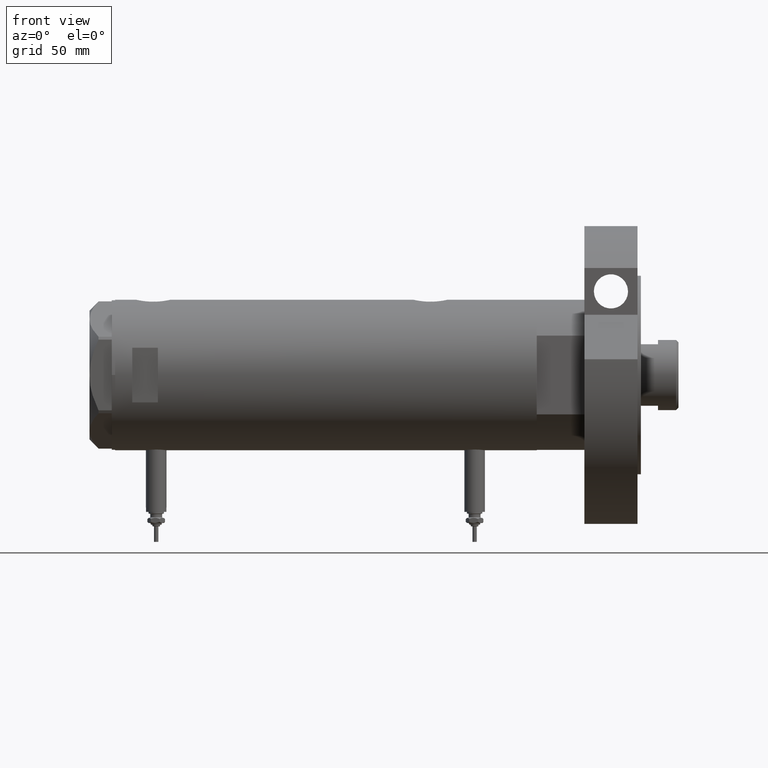
[diagram: clean part render]
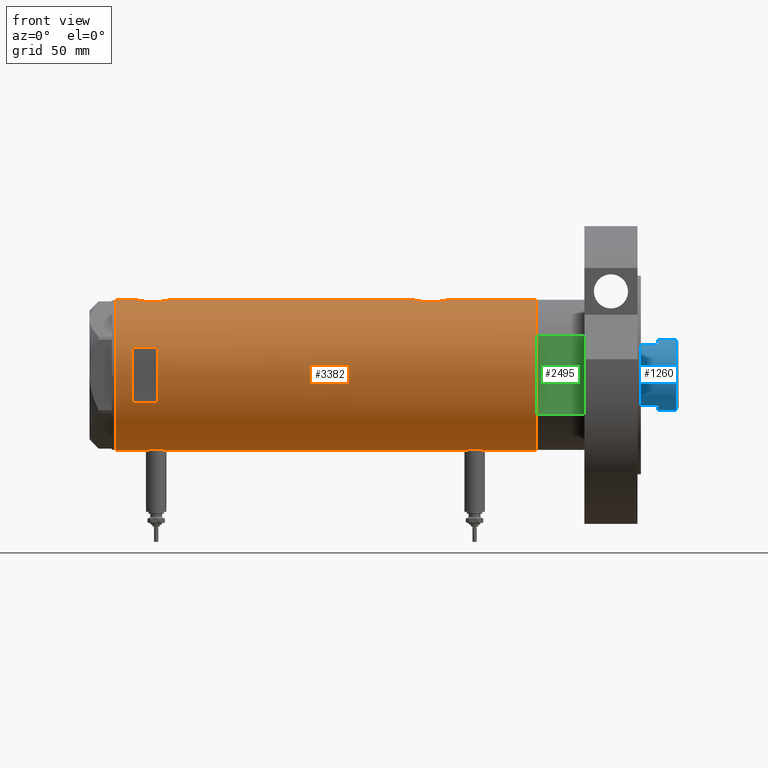
[diagram: same view with three faces highlighted in distinct colors, each labeled with its STEP entity id]
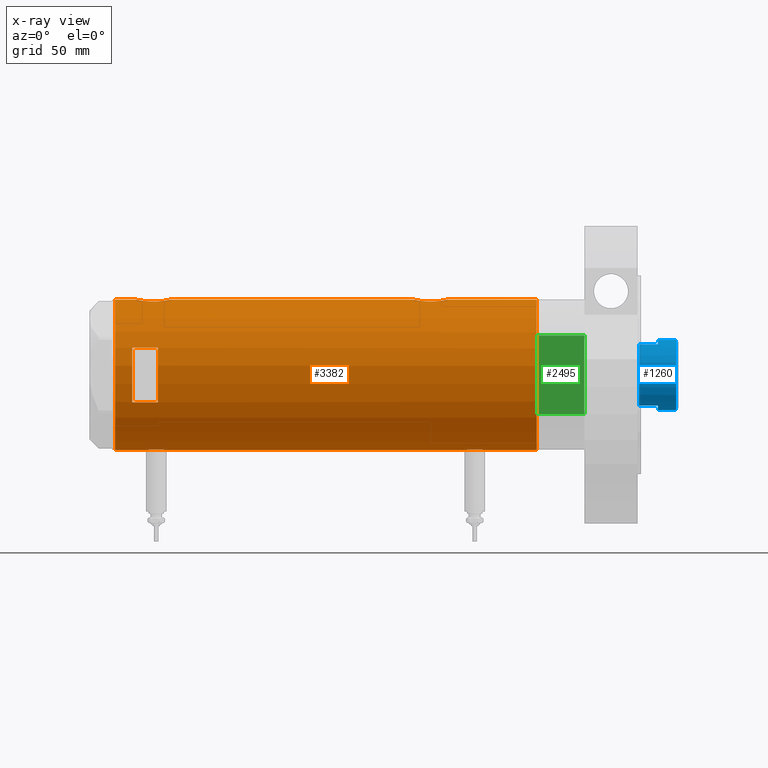
[diagram: x-ray of the same camera — body ghosted, the three highlighted faces saturated]
A machine part, front view with three faces highlighted in distinct colors.
The next image is the same camera in x-ray (body ghosted, the three faces saturated) — at least one of them is partly hidden behind the body in this view.
Their STEP definitions:

[orange] entity #3382 — the highlighted cylindrical surface (partial cylindrical patch) has radius 44 mm, axis along (-1, -0, 0).
#24 = CARTESIAN_POINT ( 'NONE',  ( -43.87623998657197433, -3.302247739865014964, -92.21034343519743004 ) ) ;
#34 = CARTESIAN_POINT ( 'NONE',  ( -43.88927795770376861, -3.124736516396338981, 93.78332595076190614 ) ) ;
#54 = CARTESIAN_POINT ( 'NONE',  ( -44.00000000000000000, 5.388445781982983516E-15, -93.15000000000000568 ) ) ;
#60 = AXIS2_PLACEMENT_3D ( 'NONE', #926, #5530, #6592 ) ;
#84 = CARTESIAN_POINT ( 'NONE',  ( 43.13833976206234411, -8.672905216733562739, -56.07967078979188358 ) ) ;
#86 = CARTESIAN_POINT ( 'NONE',  ( 43.13689707656756411, -8.680169016269172033, 95.89163097888801701 ) ) ;
#120 = CARTESIAN_POINT ( 'NONE',  ( -43.74870614644074607, -4.704745394280565485, 95.06553512659974103 ) ) ;
#121 = CARTESIAN_POINT ( 'NONE',  ( 43.24269204559828950, -8.130405600641552155, -55.26885497193006103 ) ) ;
#259 = CARTESIAN_POINT ( 'NONE',  ( -43.55380622335315621, -6.250277076879245719, -86.49110166609810335 ) ) ;
#306 = CARTESIAN_POINT ( 'NONE',  ( 43.77905627191558580, -4.445085099228549552, -70.08140834316036205 ) ) ;
#398 = CARTESIAN_POINT ( 'NONE',  ( 44.00000000000000000, 0.000000000000000000, -123.2000000000000028 ) ) ;
#425 = EDGE_CURVE ( 'NONE', #2690, #3885, #430, .T. ) ;
#430 = CIRCLE ( 'NONE', #1424, 44.00000000000000000 ) ;
#483 = ORIENTED_EDGE ( 'NONE', *, *, #6586, .F. ) ;
#493 = CARTESIAN_POINT ( 'NONE',  ( -44.00000000000000000, 5.388445916248352830E-15, -123.2000000000000028 ) ) ;
#578 = CARTESIAN_POINT ( 'NONE',  ( -43.74870614644073896, -4.704745394280564597, -91.03446487340028170 ) ) ;
#584 = CARTESIAN_POINT ( 'NONE',  ( -43.80686114384899810, -4.128296917151111245, 94.48984144871687363 ) ) ;
#585 = CARTESIAN_POINT ( 'NONE',  ( 43.39114022679083860, -7.298186114522538404, -54.25582720507937751 ) ) ;
#588 = CARTESIAN_POINT ( 'NONE',  ( 43.27890888111421219, -7.936045294464967093, 106.9931843665719100 ) ) ;
#617 = CARTESIAN_POINT ( 'NONE',  ( 44.00000000000000000, -0.6537011444665492554, -51.09999999999999432 ) ) ;
#622 = CARTESIAN_POINT ( 'NONE',  ( 43.35323102813806884, -7.519449998269471358, 107.5004228928426784 ) ) ;
#624 = CARTESIAN_POINT ( 'NONE',  ( 43.98543813568863214, -1.304985013906734714, 110.8365306627388378 ) ) ;
#652 = CARTESIAN_POINT ( 'NONE',  ( -43.93596008603758207, -2.395372424984026694, -92.68349180530613296 ) ) ;
#660 = CARTESIAN_POINT ( 'NONE',  ( -43.57636709704395628, -6.091127289750674301, 100.6149932566099068 ) ) ;
#663 = CARTESIAN_POINT ( 'NONE',  ( 44.00000000000000000, 0.000000000000000000, -123.2000000000000028 ) ) ;
#696 = CARTESIAN_POINT ( 'NONE',  ( -44.00000000000000000, 5.388445781982983516E-15, -93.15000000000000568 ) ) ;
#705 = CARTESIAN_POINT ( 'NONE',  ( 43.35323102813806173, -7.519449998269467805, -54.49957710715733583 ) ) ;
#711 = CARTESIAN_POINT ( 'NONE',  ( 15.96871942267132027, -40.99999999999999289, 113.1999999999999886 ) ) ;
#731 = CARTESIAN_POINT ( 'NONE',  ( -43.95442538259509746, -2.011679190499022774, -92.82093546509779003 ) ) ;
#741 = CIRCLE ( 'NONE', #2338, 44.00000000000000000 ) ;
#748 = B_SPLINE_CURVE_WITH_KNOTS ( 'NONE', 3,
 ( #6520, #6934, #2461, #2427, #3511, #3031, #1330, #4618, #34, #6448, #5344, #584, #120, #4658, #5808, #5883, #3475, #2996, #4780, #1829, #5268, #2920, #4118, #7054, #660, #6975, #2391, #3621, #1865, #3065, #5844, #4155, #4702, #6487, #7231, #1748, #1906, #1292, #5378, #1791, #3581, #4042, #1944 ),
 .UNSPECIFIED., .F., .F.,
 ( 4, 2, 2, 1, 2, 2, 2, 2, 2, 2, 2, 2, 2, 2, 2, 2, 2, 2, 2, 2, 2, 4 ),
 ( 0.01956509074799517994, 0.02078761141254040559, 0.02139887174481301668, 0.02201013207708562777, 0.02262139240935823886, 0.02323265274163085342, 0.02445517340617609642, 0.02567769407072134288, 0.02690021473526658935, 0.02751147506753921085, 0.02812273539981183582, 0.02934525606435712392, 0.03056777672890240855, 0.03117903706117505433, 0.03179029739344770011, 0.03301281805799302638, 0.03423533872253834570, 0.03545785938708367196, 0.03668038005162899129, 0.03729164038390166136, 0.03790290071617431755, 0.03912542138071964382 ),
 .UNSPECIFIED. ) ;
#765 = CARTESIAN_POINT ( 'NONE',  ( 44.00000000000000000, -3.917167710965456221E-21, -51.10000000000000853 ) ) ;
#779 = EDGE_CURVE ( 'NONE', #6002, #3525, #4027, .T. ) ;
#840 = CARTESIAN_POINT ( 'NONE',  ( -43.74813644611201369, -4.709999724143497879, -82.77155956056772368 ) ) ;
#876 = CARTESIAN_POINT ( 'NONE',  ( -43.59959777593761743, -5.922725608094073557, -84.89350688782587895 ) ) ;
#916 = CARTESIAN_POINT ( 'NONE',  ( -43.59994860325051036, -5.920144153815573240, -88.91406357569761099 ) ) ;
#923 = CARTESIAN_POINT ( 'NONE',  ( 43.13689707656755701, -8.680169016269177362, -66.10836902111202562 ) ) ;
#926 = CARTESIAN_POINT ( 'NONE',  ( 0.000000000000000000, 0.000000000000000000, 113.1999999999999886 ) ) ;
#928 = CARTESIAN_POINT ( 'NONE',  ( 42.84860178791322483, -9.999866241079297779, 101.2339638269416326 ) ) ;
#1009 = B_SPLINE_CURVE_WITH_KNOTS ( 'NONE', 3,
 ( #5379, #617, #4704, #4746, #6488, #1293, #7020, #1830, #5928, #4119, #5345, #585, #705, #3032, #121, #84, #4237, #2462, #4820, #5810, #4781, #2921, #5234, #4660, #6976, #1792, #6416, #1217, #5486, #923, #5452, #7281, #6670, #1474, #2574, #2090, #1510, #7316, #4965, #306, #4889, #2660, #7167, #2126, #6590, #4381, #3812 ),
 .UNSPECIFIED., .F., .F.,
 ( 4, 2, 2, 2, 2, 2, 2, 2, 2, 2, 1, 2, 2, 2, 2, 2, 2, 2, 2, 2, 2, 2, 2, 4 ),
 ( 0.03136730421198213187, 0.03332724096696806221, 0.03528717772195399255, 0.03626714609944695078, 0.03724711447693991595, 0.03920705123192583241, 0.04018701960941878371, 0.04116698798691173500, 0.04312692474189763758, 0.04410689311939058888, 0.04508686149688354017, 0.04606682987437649146, 0.04704679825186944275, 0.04900673500685532452, 0.05096667176184120629, 0.05292660851682708806, 0.05390657689432004629, 0.05488654527181299758, 0.05586651364930594887, 0.05684648202679890711, 0.05880641878178481663, 0.05978638715927775404, 0.06076635553677070534, 0.06272629229175658017 ),
 .UNSPECIFIED. ) ;
#1086 = AXIS2_PLACEMENT_3D ( 'NONE', #7494, #2301, #3386 ) ;
#1217 = CARTESIAN_POINT ( 'NONE',  ( 42.96573602780769363, -9.487415353952515673, -64.32734544583620107 ) ) ;
#1223 = CARTESIAN_POINT ( 'NONE',  ( 43.80655905412561424, -4.132395729537624796, 110.0120532619376235 ) ) ;
#1229 = CARTESIAN_POINT ( 'NONE',  ( 0.000000000000000000, 0.000000000000000000, -123.2000000000000028 ) ) ;
#1282 = CARTESIAN_POINT ( 'NONE',  ( -43.71916086763248899, -4.968610719017467758, -90.71335998854627292 ) ) ;
#1292 = CARTESIAN_POINT ( 'NONE',  ( -43.95404166778756405, -2.020054257598453695, 105.1180894548565590 ) ) ;
#1293 = CARTESIAN_POINT ( 'NONE',  ( 43.80655905412561424, -4.132395729537631901, -51.98794673806236233 ) ) ;
#1330 = CARTESIAN_POINT ( 'NONE',  ( -43.93596008603759628, -2.395372424984027138, 93.41650819469390399 ) ) ;
#1332 = CARTESIAN_POINT ( 'NONE',  ( 43.46477581456304051, -6.845969322274853219, 93.60355539876690045 ) ) ;
#1356 = CARTESIAN_POINT ( 'NONE',  ( -43.57664920749031268, -6.089110472216499481, -88.32363086869412427 ) ) ;
#1359 = CARTESIAN_POINT ( 'NONE',  ( -44.00000000000000000, 5.388445916248352830E-15, -123.2000000000000028 ) ) ;
#1363 = CARTESIAN_POINT ( 'NONE',  ( 43.61181667275830875, -5.838254419127776096, 92.77455890582506015 ) ) ;
#1391 = CARTESIAN_POINT ( 'NONE',  ( -43.60904414879381363, -5.852991024272605536, -84.69843683347096430 ) ) ;
#1424 = AXIS2_PLACEMENT_3D ( 'NONE', #1229, #5856, #6268 ) ;
#1457 = CARTESIAN_POINT ( 'NONE',  ( 43.94187300917955952, -2.283844398366603912, 91.15873953182952505 ) ) ;
#1474 = CARTESIAN_POINT ( 'NONE',  ( 43.39001814939470592, -7.304817421876451888, -67.93703460671676453 ) ) ;
#1506 = CARTESIAN_POINT ( 'NONE',  ( -43.66469451360046605, -5.426465874727614214, -83.77225408135791440 ) ) ;
#1510 = CARTESIAN_POINT ( 'NONE',  ( 43.57553740812844723, -6.102230194686620202, -69.02899655988672123 ) ) ;
#1532 = EDGE_CURVE ( 'NONE', #4057, #6551, #5179, .T. ) ;
#1555 = VERTEX_POINT ( 'NONE', #1706 ) ;
#1603 = CARTESIAN_POINT ( 'NONE',  ( 43.92391465552169905, -2.605621203777302775, 91.23981984898226472 ) ) ;
#1644 = CARTESIAN_POINT ( 'NONE',  ( -15.96871942267131672, -40.99999999999999289, -123.2000000000000028 ) ) ;
#1706 = CARTESIAN_POINT ( 'NONE',  ( -44.00000000000000000, 5.388445781982983516E-15, 92.95000000000000284 ) ) ;
#1716 = CARTESIAN_POINT ( 'NONE',  ( 42.86369059155247641, -9.935849517229275563, 99.59362589981802216 ) ) ;
#1748 = CARTESIAN_POINT ( 'NONE',  ( -43.91398925748692506, -2.775454910411446097, 104.8147077568106482 ) ) ;
#1755 = ORIENTED_EDGE ( 'NONE', *, *, #779, .T. ) ;
#1791 = CARTESIAN_POINT ( 'NONE',  ( -43.97729452866928312, -1.427712738744850496, 105.2882290744342413 ) ) ;
#1792 = CARTESIAN_POINT ( 'NONE',  ( 42.86369059155249062, -9.935849517229280892, -62.40637410018199915 ) ) ;
#1829 = CARTESIAN_POINT ( 'NONE',  ( -43.57664920749030557, -6.089110472216500369, 97.77636913130585583 ) ) ;
#1830 = CARTESIAN_POINT ( 'NONE',  ( 43.71528002050703066, -5.005885132985644859, -52.43693693285515423 ) ) ;
#1845 = CARTESIAN_POINT ( 'NONE',  ( 44.00000000000000000, 0.000000000000000000, -123.2000000000000028 ) ) ;
#1865 = CARTESIAN_POINT ( 'NONE',  ( -43.64013512596971367, -5.618144550806293047, 101.9688425437316539 ) ) ;
#1886 = VECTOR ( 'NONE', #5675, 1000.000000000000000 ) ;
#1906 = CARTESIAN_POINT ( 'NONE',  ( -43.94477385411916970, -2.211843467998030111, 105.0490722992286692 ) ) ;
#1944 = CARTESIAN_POINT ( 'NONE',  ( -44.00000000000000000, 4.945856149313706956E-16, 105.4500000000000171 ) ) ;
#2005 = CARTESIAN_POINT ( 'NONE',  ( -43.94477385411918391, -2.211843467998029222, -81.05092770077139619 ) ) ;
#2090 = CARTESIAN_POINT ( 'NONE',  ( 43.50208939911752282, -6.605519787823896039, -68.61487246254429806 ) ) ;
#2117 = CARTESIAN_POINT ( 'NONE',  ( -44.00000000000000000, 5.388445916248352830E-15, -123.2000000000000028 ) ) ;
#2126 = CARTESIAN_POINT ( 'NONE',  ( 43.94187300917954531, -2.283844398366606132, -70.84126046817048916 ) ) ;
#2146 = CARTESIAN_POINT ( 'NONE',  ( 43.88203303552250389, -3.235230624304763047, 91.43207386936016690 ) ) ;
#2148 = LINE ( 'NONE', #1644, #6635 ) ;
#2180 = CARTESIAN_POINT ( 'NONE',  ( -44.00000000000000000, 4.742402805755500961E-16, -80.65000000000000568 ) ) ;
#2211 = B_SPLINE_CURVE_WITH_KNOTS ( 'NONE', 3,
 ( #696, #7545, #3056, #6967, #5955, #731, #652, #5371, #7047, #24, #2420, #6477, #578, #1282, #7235, #2606, #3688, #916, #6140, #1356, #7161, #4919, #259, #3241, #6549, #3727, #876, #1391, #2568, #1506, #6100, #840, #4302, #3132, #4848, #3164, #2005, #3200, #3645, #5521, #4881, #3096, #7121 ),
 .UNSPECIFIED., .F., .F.,
 ( 4, 2, 2, 1, 2, 2, 2, 2, 2, 2, 2, 2, 2, 2, 2, 2, 2, 2, 2, 2, 2, 4 ),
 ( 0.01956509074799517994, 0.02078761141254040559, 0.02139887174481301668, 0.02201013207708562777, 0.02262139240935823886, 0.02323265274163085342, 0.02445517340617609989, 0.02567769407072134635, 0.02690021473526659282, 0.02751147506753921432, 0.02812273539981183929, 0.02934525606435712738, 0.03056777672890241548, 0.03117903706117505780, 0.03179029739344770011, 0.03301281805799302638, 0.03423533872253835264, 0.03545785938708367196, 0.03668038005162899823, 0.03729164038390166136, 0.03790290071617432449, 0.03912542138071965075 ),
 .UNSPECIFIED. ) ;
#2301 = DIRECTION ( 'NONE',  ( 0.000000000000000000, 0.000000000000000000, 1.000000000000000000 ) ) ;
#2314 = EDGE_CURVE ( 'NONE', #6551, #7166, #2148, .T. ) ;
#2330 = EDGE_CURVE ( 'NONE', #3507, #5435, #6879, .T. ) ;
#2333 = CYLINDRICAL_SURFACE ( 'NONE', #1086, 44.00000000000000000 ) ;
#2338 = AXIS2_PLACEMENT_3D ( 'NONE', #3879, #6806, #4371 ) ;
#2354 = CARTESIAN_POINT ( 'NONE',  ( 43.92776409818817740, -2.602555515054468582, 110.5780334928707447 ) ) ;
#2391 = CARTESIAN_POINT ( 'NONE',  ( -43.59959777593762453, -5.922725608094073557, 101.2064931121741722 ) ) ;
#2392 = CARTESIAN_POINT ( 'NONE',  ( 44.00000000000000000, 0.000000000000000000, 123.2000000000000028 ) ) ;
#2410 = ORIENTED_EDGE ( 'NONE', *, *, #5421, .T. ) ;
#2420 = CARTESIAN_POINT ( 'NONE',  ( -43.83572624786197025, -3.813948911733269664, -91.86836430220658656 ) ) ;
#2427 = CARTESIAN_POINT ( 'NONE',  ( -43.97755541524607992, -1.419649999726222633, 93.10988856076367881 ) ) ;
#2430 = CARTESIAN_POINT ( 'NONE',  ( 42.96858625215907779, -9.471543237354833167, 104.1244477931078194 ) ) ;
#2432 = CARTESIAN_POINT ( 'NONE',  ( 44.00000000000000000, -3.917104602093038540E-21, 110.9000000000000057 ) ) ;
#2461 = CARTESIAN_POINT ( 'NONE',  ( -43.99432382855036394, -0.8140126287075738487, 92.98957833183087018 ) ) ;
#2462 = CARTESIAN_POINT ( 'NONE',  ( 42.99316244204495518, -9.359736474891656499, -57.56396979967825445 ) ) ;
#2517 = CARTESIAN_POINT ( 'NONE',  ( -44.00000000000000000, 5.388445916248352830E-15, 123.2000000000000028 ) ) ;
#2568 = CARTESIAN_POINT ( 'NONE',  ( -43.64013512596970656, -5.618144550806293047, -84.13115745626835462 ) ) ;
#2574 = CARTESIAN_POINT ( 'NONE',  ( 43.46477581456304051, -6.845969322274835456, -68.39644460123312797 ) ) ;
#2606 = CARTESIAN_POINT ( 'NONE',  ( -43.64064219598290606, -5.614224114468904681, -89.67685489619474026 ) ) ;
#2629 = EDGE_CURVE ( 'NONE', #4379, #3525, #5307, .T. ) ;
#2634 = CARTESIAN_POINT ( 'NONE',  ( 43.98503203903425884, -1.316644100880397072, 90.96527044704372145 ) ) ;
#2660 = CARTESIAN_POINT ( 'NONE',  ( 43.88203303552250389, -3.235230624304761715, -70.56792613063983310 ) ) ;
#2684 = LINE ( 'NONE', #2117, #4261 ) ;
#2690 = VERTEX_POINT ( 'NONE', #1359 ) ;
#2855 = ORIENTED_EDGE ( 'NONE', *, *, #5453, .F. ) ;
#2920 = CARTESIAN_POINT ( 'NONE',  ( -43.55388615229804117, -6.249720082677240107, 98.78267485888017063 ) ) ;
#2921 = CARTESIAN_POINT ( 'NONE',  ( 42.86761451923558042, -9.918101748202660772, -59.78132476450375066 ) ) ;
#2923 = CARTESIAN_POINT ( 'NONE',  ( 43.07321175413310499, -8.986876637256992595, 96.46571798011248688 ) ) ;
#2970 = VECTOR ( 'NONE', #3996, 1000.000000000000000 ) ;
#2985 = CARTESIAN_POINT ( 'NONE',  ( 43.24192112218942441, -8.134529092006104634, 95.07447770135891574 ) ) ;
#2996 = CARTESIAN_POINT ( 'NONE',  ( -43.59994860325051036, -5.920144153815573240, 97.18593642430241175 ) ) ;
#3031 = CARTESIAN_POINT ( 'NONE',  ( -43.95442538259509035, -2.011679190499021441, 93.27906453490220429 ) ) ;
#3032 = CARTESIAN_POINT ( 'NONE',  ( 43.27890888111422640, -7.936045294464967093, -55.00681563342806868 ) ) ;
#3056 = CARTESIAN_POINT ( 'NONE',  ( -43.99432382855035684, -0.8140126287075731826, -93.11042166816913834 ) ) ;
#3065 = CARTESIAN_POINT ( 'NONE',  ( -43.66469451360045895, -5.426465874727613325, 102.3277459186421083 ) ) ;
#3069 = CARTESIAN_POINT ( 'NONE',  ( 43.77905627191557159, -4.445085099228552217, 91.91859165683966637 ) ) ;
#3096 = CARTESIAN_POINT ( 'NONE',  ( -44.00000000000000711, -0.4134142287044829667, -80.65000000000003411 ) ) ;
#3107 = CARTESIAN_POINT ( 'NONE',  ( 43.07447880731471201, -8.980869115410033743, 105.3470997020410636 ) ) ;
#3132 = CARTESIAN_POINT ( 'NONE',  ( -43.83513771791773905, -3.820747781112549646, -81.93678981703629916 ) ) ;
#3164 = CARTESIAN_POINT ( 'NONE',  ( -43.91398925748691795, -2.775454910411441656, -81.28529224318936031 ) ) ;
#3200 = CARTESIAN_POINT ( 'NONE',  ( -43.95404166778754984, -2.020054257598467018, -80.98191054514347798 ) ) ;
#3213 = ORIENTED_EDGE ( 'NONE', *, *, #2629, .F. ) ;
#3223 = CARTESIAN_POINT ( 'NONE',  ( 15.96871942267132027, -40.99999999999999289, 98.19999999999998863 ) ) ;
#3241 = CARTESIAN_POINT ( 'NONE',  ( -43.55964145621771877, -6.209995197331128480, -86.08476386616429465 ) ) ;
#3260 = CARTESIAN_POINT ( 'NONE',  ( -15.96871942267132027, -40.99999999999999289, 98.19999999999998863 ) ) ;
#3265 = DIRECTION ( 'NONE',  ( 1.000000000000000000, 0.000000000000000000, 0.000000000000000000 ) ) ;
#3285 = CARTESIAN_POINT ( 'NONE',  ( 42.84850870634927844, -10.00026508230968147, 100.2441608487826130 ) ) ;
#3377 = CARTESIAN_POINT ( 'NONE',  ( 44.00000000000000000, -0.6628808997490054367, 90.90000000000001990 ) ) ;
#3379 = CARTESIAN_POINT ( 'NONE',  ( 0.000000000000000000, 0.000000000000000000, 123.2000000000000028 ) ) ;
#3382 = ADVANCED_FACE ( 'NONE', ( #6393, #6878 ), #2333, .T. ) ;
#3386 = DIRECTION ( 'NONE',  ( 1.000000000000000000, 0.000000000000000000, 0.000000000000000000 ) ) ;
#3389 = DIRECTION ( 'NONE',  ( 0.000000000000000000, 0.000000000000000000, 1.000000000000000000 ) ) ;
#3409 = CARTESIAN_POINT ( 'NONE',  ( 44.00000000000000000, -2.119006702872526837E-15, 90.90000000000000568 ) ) ;
#3475 = CARTESIAN_POINT ( 'NONE',  ( -43.60943079847654502, -5.850114217193380206, 96.99078124073395202 ) ) ;
#3493 = EDGE_CURVE ( 'NONE', #4379, #5435, #7110, .T. ) ;
#3507 = VERTEX_POINT ( 'NONE', #2517 ) ;
#3511 = CARTESIAN_POINT ( 'NONE',  ( -43.97059312650997498, -1.620278982928819556, 93.16021308614132579 ) ) ;
#3515 = CARTESIAN_POINT ( 'NONE',  ( 43.77763691689008851, -4.427538730370032205, 109.8724271220806941 ) ) ;
#3525 = VERTEX_POINT ( 'NONE', #6571 ) ;
#3581 = CARTESIAN_POINT ( 'NONE',  ( -43.99417593155911987, -0.8219945290704643304, 105.4093810241296296 ) ) ;
#3621 = CARTESIAN_POINT ( 'NONE',  ( -43.60904414879381363, -5.852991024272606424, 101.4015631665291437 ) ) ;
#3645 = CARTESIAN_POINT ( 'NONE',  ( -43.97029046111975958, -1.628482392291955128, -80.86241380207945895 ) ) ;
#3688 = CARTESIAN_POINT ( 'NONE',  ( -43.60943079847655213, -5.850114217193378430, -89.10921875926607072 ) ) ;
#3727 = CARTESIAN_POINT ( 'NONE',  ( -43.58327167020068060, -6.041691433183235205, -85.28672449216634277 ) ) ;
#3778 = ORIENTED_EDGE ( 'NONE', *, *, #2314, .F. ) ;
#3812 = CARTESIAN_POINT ( 'NONE',  ( 44.00000000000000000, -1.742910476879209922E-15, -71.10000000000000853 ) ) ;
#3859 = CARTESIAN_POINT ( 'NONE',  ( 44.00000000000000000, -1.742910476879209922E-15, -71.10000000000000853 ) ) ;
#3879 = CARTESIAN_POINT ( 'NONE',  ( 0.000000000000000000, 0.000000000000000000, 98.20000000000017337 ) ) ;
#3885 = VERTEX_POINT ( 'NONE', #398 ) ;
#3888 = CARTESIAN_POINT ( 'NONE',  ( 42.86761451923558042, -9.918101748202657220, 102.2186752354962636 ) ) ;
#3953 = LINE ( 'NONE', #4495, #1886 ) ;
#3965 = CARTESIAN_POINT ( 'NONE',  ( 43.57790701154752355, -6.104591320335876148, 108.8474130089493457 ) ) ;
#3996 = DIRECTION ( 'NONE',  ( 0.000000000000000000, 0.000000000000000000, 1.000000000000000000 ) ) ;
#4027 = LINE ( 'NONE', #5253, #4332 ) ;
#4042 = CARTESIAN_POINT ( 'NONE',  ( -44.00000000000000711, -0.4134142287044841879, 105.4500000000000313 ) ) ;
#4057 = VERTEX_POINT ( 'NONE', #711 ) ;
#4084 = CARTESIAN_POINT ( 'NONE',  ( 43.24269204559828239, -8.130405600641543273, 106.7311450280699319 ) ) ;
#4087 = CARTESIAN_POINT ( 'NONE',  ( 43.88549648731377317, -3.229309612650767658, 110.3866430248638864 ) ) ;
#4118 = CARTESIAN_POINT ( 'NONE',  ( -43.55380622335317042, -6.250277076879246607, 99.60889833390191939 ) ) ;
#4119 = CARTESIAN_POINT ( 'NONE',  ( 43.57790701154751645, -6.104591320335877924, -53.15258699105065432 ) ) ;
#4121 = CARTESIAN_POINT ( 'NONE',  ( 43.35257225115236679, -7.523216248090024649, 94.30394696407654465 ) ) ;
#4155 = CARTESIAN_POINT ( 'NONE',  ( -43.74813644611200658, -4.709999724143498767, 103.3284404394322848 ) ) ;
#4178 = VERTEX_POINT ( 'NONE', #5575 ) ;
#4198 = CARTESIAN_POINT ( 'NONE',  ( 42.96573602780769363, -9.487415353952517449, 97.67265455416384157 ) ) ;
#4237 = CARTESIAN_POINT ( 'NONE',  ( 43.07447880731470491, -8.980869115410037296, -56.65290029795897198 ) ) ;
#4239 = VECTOR ( 'NONE', #5288, 1000.000000000000000 ) ;
#4255 = ORIENTED_EDGE ( 'NONE', *, *, #2330, .F. ) ;
#4261 = VECTOR ( 'NONE', #4413, 1000.000000000000000 ) ;
#4270 = CARTESIAN_POINT ( 'NONE',  ( 43.50208939911752992, -6.605519787823896039, 93.38512753745570194 ) ) ;
#4295 = EDGE_CURVE ( 'NONE', #1555, #4178, #748, .T. ) ;
#4302 = CARTESIAN_POINT ( 'NONE',  ( -43.80623767923740530, -4.134861581628530125, -82.19563632739304637 ) ) ;
#4332 = VECTOR ( 'NONE', #3389, 1000.000000000000000 ) ;
#4340 = EDGE_CURVE ( 'NONE', #7166, #7168, #741, .T. ) ;
#4371 = DIRECTION ( 'NONE',  ( 1.776356839400250465E-15, 1.000000000000000000, 4.731064025391292434E-15 ) ) ;
#4379 = VERTEX_POINT ( 'NONE', #4819 ) ;
#4381 = CARTESIAN_POINT ( 'NONE',  ( 43.99999999999999289, -0.6628808997490076571, -71.09999999999999432 ) ) ;
#4413 = DIRECTION ( 'NONE',  ( 0.000000000000000000, 0.000000000000000000, 1.000000000000000000 ) ) ;
#4432 = EDGE_CURVE ( 'NONE', #4178, #3507, #2684, .T. ) ;
#4442 = DIRECTION ( 'NONE',  ( -0.000000000000000000, -0.000000000000000000, -1.000000000000000000 ) ) ;
#4495 = CARTESIAN_POINT ( 'NONE',  ( -44.00000000000000000, 5.388445916248352830E-15, -123.2000000000000028 ) ) ;
#4618 = CARTESIAN_POINT ( 'NONE',  ( -43.91347832647110039, -2.763895659397272553, 93.59061350622417308 ) ) ;
#4624 = CARTESIAN_POINT ( 'NONE',  ( 43.99999999999999289, -0.6537011444665493665, 110.9000000000000057 ) ) ;
#4658 = CARTESIAN_POINT ( 'NONE',  ( -43.71916086763249609, -4.968610719017477528, 95.38664001145379245 ) ) ;
#4660 = CARTESIAN_POINT ( 'NONE',  ( 42.84860178791322483, -9.999866241079299556, -60.76603617305838156 ) ) ;
#4702 = CARTESIAN_POINT ( 'NONE',  ( -43.80623767923739820, -4.134861581628530125, 103.9043636726069764 ) ) ;
#4704 = CARTESIAN_POINT ( 'NONE',  ( 43.98543813568861793, -1.304985013906732716, -51.16346933726119772 ) ) ;
#4746 = CARTESIAN_POINT ( 'NONE',  ( 43.92776409818818451, -2.602555515054471247, -51.42196650712919137 ) ) ;
#4780 = CARTESIAN_POINT ( 'NONE',  ( -43.58358352828437177, -6.039443007521655638, 97.57836901614263070 ) ) ;
#4781 = CARTESIAN_POINT ( 'NONE',  ( 42.89003040145176726, -9.821289533110936887, -59.13508371670006625 ) ) ;
#4784 = CARTESIAN_POINT ( 'NONE',  ( 42.92195198079052432, -9.681069926205539744, 98.31067499093484230 ) ) ;
#4785 = ORIENTED_EDGE ( 'NONE', *, *, #425, .T. ) ;
#4819 = CARTESIAN_POINT ( 'NONE',  ( 44.00000000000000000, -3.917104602093038540E-21, 110.9000000000000057 ) ) ;
#4820 = CARTESIAN_POINT ( 'NONE',  ( 42.96858625215907779, -9.471543237354843825, -57.87555220689220192 ) ) ;
#4848 = CARTESIAN_POINT ( 'NONE',  ( -43.88932649443424339, -3.137583818903200594, -81.47900961940457876 ) ) ;
#4881 = CARTESIAN_POINT ( 'NONE',  ( -43.99417593155913409, -0.8219945290704695484, -80.69061897587040733 ) ) ;
#4889 = CARTESIAN_POINT ( 'NONE',  ( 43.85817087158036287, -3.542878095418171558, -70.45703661115524596 ) ) ;
#4892 = CARTESIAN_POINT ( 'NONE',  ( 42.99316244204494808, -9.359736474891649394, 104.4360302003217527 ) ) ;
#4919 = CARTESIAN_POINT ( 'NONE',  ( -43.55388615229803406, -6.249720082677240107, -87.31732514111985211 ) ) ;
#4965 = CARTESIAN_POINT ( 'NONE',  ( 43.71626298452613923, -5.019105827807316622, -69.77413437979598143 ) ) ;
#4969 = CARTESIAN_POINT ( 'NONE',  ( 42.85249883256043546, -9.983208936152870194, 101.5657221654182081 ) ) ;
#5005 = ORIENTED_EDGE ( 'NONE', *, *, #5909, .F. ) ;
#5114 = CARTESIAN_POINT ( 'NONE',  ( 43.68175117880464597, -5.289576318274434641, 109.3927754329155846 ) ) ;
#5116 = ORIENTED_EDGE ( 'NONE', *, *, #4295, .F. ) ;
#5145 = VECTOR ( 'NONE', #6321, 1000.000000000000000 ) ;
#5151 = ORIENTED_EDGE ( 'NONE', *, *, #4340, .F. ) ;
#5179 = CIRCLE ( 'NONE', #60, 44.00000000000000000 ) ;
#5234 = CARTESIAN_POINT ( 'NONE',  ( 42.85249883256042835, -9.983208936152877300, -60.43427783458179192 ) ) ;
#5253 = CARTESIAN_POINT ( 'NONE',  ( 44.00000000000000000, 0.000000000000000000, -123.2000000000000028 ) ) ;
#5268 = CARTESIAN_POINT ( 'NONE',  ( -43.55981666146651321, -6.208773019004409477, 98.37562000806386209 ) ) ;
#5270 = DIRECTION ( 'NONE',  ( 0.000000000000000000, 0.000000000000000000, 1.000000000000000000 ) ) ;
#5272 = CARTESIAN_POINT ( 'NONE',  ( 43.27861175590268061, -7.937636171351964975, 94.80897132009003769 ) ) ;
#5288 = DIRECTION ( 'NONE',  ( 0.000000000000000000, 0.000000000000000000, 1.000000000000000000 ) ) ;
#5307 = B_SPLINE_CURVE_WITH_KNOTS ( 'NONE', 3,
 ( #2432, #4624, #624, #2354, #4087, #1223, #3515, #5716, #5114, #3965, #5804, #6331, #622, #588, #4084, #6419, #3107, #4892, #2430, #6525, #6784, #3888, #4969, #928, #3285, #1716, #4784, #4198, #2923, #86, #2985, #5272, #4121, #6451, #1332, #4270, #5489, #1363, #6593, #3069, #7138, #2146, #1603, #1457, #2634, #3377, #3409 ),
 .UNSPECIFIED., .F., .F.,
 ( 4, 2, 2, 2, 2, 2, 2, 2, 2, 2, 1, 2, 2, 2, 2, 2, 2, 2, 2, 2, 2, 2, 2, 4 ),
 ( 0.03136730421198211799, 0.03332724096696803445, 0.03528717772195395785, 0.03626714609944691609, 0.03724711447693987432, 0.03920705123192579078, 0.04018701960941873513, 0.04116698798691167949, 0.04312692474189759595, 0.04410689311939056112, 0.04508686149688351935, 0.04606682987437648452, 0.04704679825186944275, 0.04900673500685531758, 0.05096667176184120629, 0.05292660851682708112, 0.05390657689432002547, 0.05488654527181296983, 0.05586651364930590724, 0.05684648202679884466, 0.05880641878178471949, 0.05978638715927767078, 0.06076635553677062207, 0.06272629229175652465 ),
 .UNSPECIFIED. ) ;
#5344 = CARTESIAN_POINT ( 'NONE',  ( -43.83572624786197025, -3.813948911733267888, 94.23163569779339355 ) ) ;
#5345 = CARTESIAN_POINT ( 'NONE',  ( 43.50370990764397305, -6.606474645717129945, -53.56479064715112770 ) ) ;
#5371 = CARTESIAN_POINT ( 'NONE',  ( -43.91347832647111460, -2.763895659397271221, -92.50938649377584966 ) ) ;
#5378 = CARTESIAN_POINT ( 'NONE',  ( -43.97029046111977379, -1.628482392291941805, 105.2375861979205922 ) ) ;
#5379 = CARTESIAN_POINT ( 'NONE',  ( 44.00000000000000000, -3.917167710965456221E-21, -51.10000000000000853 ) ) ;
#5421 = EDGE_CURVE ( 'NONE', #3885, #6425, #7055, .T. ) ;
#5435 = VERTEX_POINT ( 'NONE', #2392 ) ;
#5452 = CARTESIAN_POINT ( 'NONE',  ( 43.24192112218941730, -8.134529092006104634, -66.92552229864111268 ) ) ;
#5453 = EDGE_CURVE ( 'NONE', #6002, #6425, #1009, .T. ) ;
#5486 = CARTESIAN_POINT ( 'NONE',  ( 43.07321175413309078, -8.986876637256996148, -65.53428201988756996 ) ) ;
#5489 = CARTESIAN_POINT ( 'NONE',  ( 43.57553740812846144, -6.102230194686623754, 92.97100344011330719 ) ) ;
#5521 = CARTESIAN_POINT ( 'NONE',  ( -43.97729452866927602, -1.427712738744856047, -80.81177092556575303 ) ) ;
#5530 = DIRECTION ( 'NONE',  ( -0.000000000000000000, 0.000000000000000000, -1.000000000000000000 ) ) ;
#5539 = ORIENTED_EDGE ( 'NONE', *, *, #1532, .F. ) ;
#5575 = CARTESIAN_POINT ( 'NONE',  ( -44.00000000000000000, 4.945856149313706956E-16, 105.4500000000000171 ) ) ;
#5667 = EDGE_LOOP ( 'NONE', ( #483, #4785, #2410, #2855, #1755, #3213, #6515, #4255, #6680, #5116, #6896, #5005 ) ) ;
#5675 = DIRECTION ( 'NONE',  ( 0.000000000000000000, 0.000000000000000000, 1.000000000000000000 ) ) ;
#5716 = CARTESIAN_POINT ( 'NONE',  ( 43.71528002050701645, -5.005885132985632424, 109.5630630671448813 ) ) ;
#5755 = EDGE_LOOP ( 'NONE', ( #5151, #3778, #5539, #6988 ) ) ;
#5804 = CARTESIAN_POINT ( 'NONE',  ( 43.50370990764398016, -6.606474645717128169, 108.4352093528488865 ) ) ;
#5808 = CARTESIAN_POINT ( 'NONE',  ( -43.66524845950890210, -5.422010366683142735, 96.06461956647019917 ) ) ;
#5810 = CARTESIAN_POINT ( 'NONE',  ( 42.92612181419236350, -9.662173761604318400, -58.50200210390288191 ) ) ;
#5844 = CARTESIAN_POINT ( 'NONE',  ( -43.71863308610075904, -4.973248429199019327, 103.0073779012117541 ) ) ;
#5856 = DIRECTION ( 'NONE',  ( 0.000000000000000000, 0.000000000000000000, 1.000000000000000000 ) ) ;
#5872 = CARTESIAN_POINT ( 'NONE',  ( -15.96871942267132027, -40.99999999999999289, 113.1999999999999886 ) ) ;
#5883 = CARTESIAN_POINT ( 'NONE',  ( -43.64064219598290606, -5.614224114468903792, 96.42314510380529669 ) ) ;
#5909 = EDGE_CURVE ( 'NONE', #6924, #7300, #2211, .T. ) ;
#5928 = CARTESIAN_POINT ( 'NONE',  ( 43.68175117880464597, -5.289576318274436417, -52.60722456708441541 ) ) ;
#5955 = CARTESIAN_POINT ( 'NONE',  ( -43.97059312650996787, -1.620278982928820444, -92.93978691385871116 ) ) ;
#6002 = VERTEX_POINT ( 'NONE', #765 ) ;
#6042 = AXIS2_PLACEMENT_3D ( 'NONE', #3379, #6266, #3265 ) ;
#6100 = CARTESIAN_POINT ( 'NONE',  ( -43.71863308610073773, -4.973248429199020215, -83.09262209878829708 ) ) ;
#6117 = EDGE_CURVE ( 'NONE', #7168, #4057, #7352, .T. ) ;
#6129 = EDGE_CURVE ( 'NONE', #7300, #1555, #3953, .T. ) ;
#6140 = CARTESIAN_POINT ( 'NONE',  ( -43.58358352828439308, -6.039443007521657414, -88.52163098385740625 ) ) ;
#6266 = DIRECTION ( 'NONE',  ( 0.000000000000000000, 0.000000000000000000, 1.000000000000000000 ) ) ;
#6268 = DIRECTION ( 'NONE',  ( 1.000000000000000000, 0.000000000000000000, 0.000000000000000000 ) ) ;
#6321 = DIRECTION ( 'NONE',  ( 0.000000000000000000, 0.000000000000000000, 1.000000000000000000 ) ) ;
#6331 = CARTESIAN_POINT ( 'NONE',  ( 43.39114022679085281, -7.298186114522533074, 107.7441727949206438 ) ) ;
#6393 = FACE_OUTER_BOUND ( 'NONE', #5667, .T. ) ;
#6416 = CARTESIAN_POINT ( 'NONE',  ( 42.92195198079052432, -9.681069926205545073, -63.68932500906514349 ) ) ;
#6419 = CARTESIAN_POINT ( 'NONE',  ( 43.13833976206233700, -8.672905216733552081, 105.9203292102081804 ) ) ;
#6425 = VERTEX_POINT ( 'NONE', #3859 ) ;
#6448 = CARTESIAN_POINT ( 'NONE',  ( -43.87623998657198143, -3.302247739865013632, 93.88965656480257849 ) ) ;
#6451 = CARTESIAN_POINT ( 'NONE',  ( 43.39001814939471302, -7.304817421876466987, 94.06296539328327810 ) ) ;
#6473 = LINE ( 'NONE', #493, #2970 ) ;
#6477 = CARTESIAN_POINT ( 'NONE',  ( -43.80686114384899810, -4.128296917151111245, -91.61015855128310648 ) ) ;
#6487 = CARTESIAN_POINT ( 'NONE',  ( -43.83513771791773195, -3.820747781112552754, 104.1632101829637378 ) ) ;
#6488 = CARTESIAN_POINT ( 'NONE',  ( 43.88549648731375896, -3.229309612650775652, -51.61335697513614207 ) ) ;
#6515 = ORIENTED_EDGE ( 'NONE', *, *, #3493, .T. ) ;
#6520 = CARTESIAN_POINT ( 'NONE',  ( -44.00000000000000000, 5.388445781982983516E-15, 92.95000000000000284 ) ) ;
#6525 = CARTESIAN_POINT ( 'NONE',  ( 42.92612181419235640, -9.662173761604311295, 103.4979978960971465 ) ) ;
#6549 = CARTESIAN_POINT ( 'NONE',  ( -43.57636709704393496, -6.091127289750673413, -85.48500674339014438 ) ) ;
#6551 = VERTEX_POINT ( 'NONE', #5872 ) ;
#6571 = CARTESIAN_POINT ( 'NONE',  ( 44.00000000000000000, -2.119006702872526837E-15, 90.90000000000000568 ) ) ;
#6586 = EDGE_CURVE ( 'NONE', #2690, #6924, #6473, .T. ) ;
#6590 = CARTESIAN_POINT ( 'NONE',  ( 43.98503203903424463, -1.316644100880400403, -71.03472955295633540 ) ) ;
#6592 = DIRECTION ( 'NONE',  ( 1.000000000000000000, 0.000000000000000000, 0.000000000000000000 ) ) ;
#6593 = CARTESIAN_POINT ( 'NONE',  ( 43.71626298452613923, -5.019105827807311293, 92.22586562020403278 ) ) ;
#6635 = VECTOR ( 'NONE', #4442, 1000.000000000000000 ) ;
#6670 = CARTESIAN_POINT ( 'NONE',  ( 43.35257225115238100, -7.523216248090028202, -67.69605303592346957 ) ) ;
#6680 = ORIENTED_EDGE ( 'NONE', *, *, #4432, .F. ) ;
#6784 = CARTESIAN_POINT ( 'NONE',  ( 42.89003040145177437, -9.821289533110936887, 102.8649162832999338 ) ) ;
#6806 = DIRECTION ( 'NONE',  ( -0.000000000000000000, -4.625929269271481378E-15, 1.000000000000000000 ) ) ;
#6878 = FACE_BOUND ( 'NONE', #5755, .T. ) ;
#6879 = CIRCLE ( 'NONE', #6042, 44.00000000000000000 ) ;
#6896 = ORIENTED_EDGE ( 'NONE', *, *, #6129, .F. ) ;
#6924 = VERTEX_POINT ( 'NONE', #54 ) ;
#6934 = CARTESIAN_POINT ( 'NONE',  ( -44.00000000000000711, -0.4080709675389188051, 92.95000000000001705 ) ) ;
#6967 = CARTESIAN_POINT ( 'NONE',  ( -43.97755541524607281, -1.419649999726221967, -92.99011143923634393 ) ) ;
#6975 = CARTESIAN_POINT ( 'NONE',  ( -43.58327167020068771, -6.041691433183236981, 100.8132755078336658 ) ) ;
#6976 = CARTESIAN_POINT ( 'NONE',  ( 42.84850870634925712, -10.00026508230968858, -61.75583915121742251 ) ) ;
#6988 = ORIENTED_EDGE ( 'NONE', *, *, #6117, .F. ) ;
#7020 = CARTESIAN_POINT ( 'NONE',  ( 43.77763691689010983, -4.427538730370041087, -52.12757287791930594 ) ) ;
#7047 = CARTESIAN_POINT ( 'NONE',  ( -43.88927795770376861, -3.124736516396338093, -92.31667404923808817 ) ) ;
#7054 = CARTESIAN_POINT ( 'NONE',  ( -43.55964145621771877, -6.209995197331127592, 100.0152361338357565 ) ) ;
#7055 = LINE ( 'NONE', #663, #7079 ) ;
#7079 = VECTOR ( 'NONE', #5270, 1000.000000000000000 ) ;
#7110 = LINE ( 'NONE', #1845, #4239 ) ;
#7121 = CARTESIAN_POINT ( 'NONE',  ( -44.00000000000000000, 4.742402805755500961E-16, -80.65000000000000568 ) ) ;
#7138 = CARTESIAN_POINT ( 'NONE',  ( 43.85817087158036998, -3.542878095418176887, 91.54296338884479667 ) ) ;
#7161 = CARTESIAN_POINT ( 'NONE',  ( -43.55981666146652742, -6.208773019004409477, -87.72437999193618907 ) ) ;
#7166 = VERTEX_POINT ( 'NONE', #3260 ) ;
#7167 = CARTESIAN_POINT ( 'NONE',  ( 43.92391465552168484, -2.605621203777297001, -70.76018015101780634 ) ) ;
#7168 = VERTEX_POINT ( 'NONE', #3223 ) ;
#7231 = CARTESIAN_POINT ( 'NONE',  ( -43.88932649443422918, -3.137583818903200594, 104.6209903805954298 ) ) ;
#7235 = CARTESIAN_POINT ( 'NONE',  ( -43.66524845950889500, -5.422010366683132965, -90.03538043352982356 ) ) ;
#7281 = CARTESIAN_POINT ( 'NONE',  ( 43.27861175590267351, -7.937636171351968528, -67.19102867990997652 ) ) ;
#7300 = VERTEX_POINT ( 'NONE', #2180 ) ;
#7316 = CARTESIAN_POINT ( 'NONE',  ( 43.61181667275830165, -5.838254419127786754, -69.22544109417493985 ) ) ;
#7352 = LINE ( 'NONE', #7390, #5145 ) ;
#7390 = CARTESIAN_POINT ( 'NONE',  ( 15.96871942267131672, -40.99999999999999289, -123.2000000000000028 ) ) ;
#7494 = CARTESIAN_POINT ( 'NONE',  ( 0.000000000000000000, 0.000000000000000000, -123.2000000000000028 ) ) ;
#7545 = CARTESIAN_POINT ( 'NONE',  ( -43.99999999999998579, -0.4080709675389182500, -93.15000000000000568 ) ) ;

[blue] entity #1260 — the highlighted cylindrical surface (edge-blend (fillet) strip) has radius 20.5 mm, axis along (-1, -0, 0).
#19 = VERTEX_POINT ( 'NONE', #1717 ) ;
#35 = DIRECTION ( 'NONE',  ( 0.000000000000000000, 0.000000000000000000, 1.000000000000000000 ) ) ;
#39 = EDGE_CURVE ( 'NONE', #917, #4452, #4007, .T. ) ;
#142 = AXIS2_PLACEMENT_3D ( 'NONE', #3582, #35, #1331 ) ;
#224 = CARTESIAN_POINT ( 'NONE',  ( 20.50000000000000355, 2.510525938252074481E-15, 291.3000000000000114 ) ) ;
#298 = CARTESIAN_POINT ( 'NONE',  ( -20.50000000000000000, 0.000000000000000000, 291.3000000000000114 ) ) ;
#319 = ORIENTED_EDGE ( 'NONE', *, *, #1169, .F. ) ;
#547 = DIRECTION ( 'NONE',  ( -0.000000000000000000, -0.000000000000000000, -1.000000000000000000 ) ) ;
#611 = EDGE_CURVE ( 'NONE', #4375, #676, #2438, .T. ) ;
#642 = CIRCLE ( 'NONE', #7323, 20.50000000000000000 ) ;
#676 = VERTEX_POINT ( 'NONE', #298 ) ;
#808 = CYLINDRICAL_SURFACE ( 'NONE', #3481, 20.50000000000000355 ) ;
#917 = VERTEX_POINT ( 'NONE', #935 ) ;
#935 = CARTESIAN_POINT ( 'NONE',  ( -17.97852886083842705, -9.849999999999996092, 291.3000000000000114 ) ) ;
#1035 = CARTESIAN_POINT ( 'NONE',  ( -17.97852886083842350, -9.850000000000253664, 280.3000000000000114 ) ) ;
#1169 = EDGE_CURVE ( 'NONE', #19, #7014, #4738, .T. ) ;
#1260 = ADVANCED_FACE ( 'NONE', ( #4849 ), #808, .T. ) ;
#1331 = DIRECTION ( 'NONE',  ( 1.000000000000000000, 0.000000000000000000, 0.000000000000000000 ) ) ;
#1357 = DIRECTION ( 'NONE',  ( -1.000000000000000000, 0.000000000000000000, 0.000000000000000000 ) ) ;
#1451 = ORIENTED_EDGE ( 'NONE', *, *, #611, .T. ) ;
#1616 = CARTESIAN_POINT ( 'NONE',  ( -20.50000000000000355, 0.000000000000000000, 301.8999999999999773 ) ) ;
#1688 = ORIENTED_EDGE ( 'NONE', *, *, #3921, .T. ) ;
#1717 = CARTESIAN_POINT ( 'NONE',  ( 17.97852886083843060, -9.849999999999994316, 291.3000000000000114 ) ) ;
#1785 = DIRECTION ( 'NONE',  ( -0.000000000000000000, -0.000000000000000000, -1.000000000000000000 ) ) ;
#1936 = LINE ( 'NONE', #224, #5500 ) ;
#2278 = VERTEX_POINT ( 'NONE', #6194 ) ;
#2300 = ORIENTED_EDGE ( 'NONE', *, *, #5412, .T. ) ;
#2344 = CARTESIAN_POINT ( 'NONE',  ( 17.97852886083843060, -9.849999999999994316, 291.3000000000000114 ) ) ;
#2438 = LINE ( 'NONE', #4755, #5305 ) ;
#2556 = CARTESIAN_POINT ( 'NONE',  ( 17.97852886083843060, -9.850000000000243006, 280.3000000000000114 ) ) ;
#2646 = VECTOR ( 'NONE', #547, 1000.000000000000000 ) ;
#2650 = DIRECTION ( 'NONE',  ( -0.000000000000000000, -0.000000000000000000, -1.000000000000000000 ) ) ;
#2702 = AXIS2_PLACEMENT_3D ( 'NONE', #5277, #5349, #4670 ) ;
#3021 = ORIENTED_EDGE ( 'NONE', *, *, #5899, .T. ) ;
#3191 = CIRCLE ( 'NONE', #142, 20.50000000000000355 ) ;
#3481 = AXIS2_PLACEMENT_3D ( 'NONE', #6550, #2650, #1357 ) ;
#3582 = CARTESIAN_POINT ( 'NONE',  ( 0.000000000000000000, 0.000000000000000000, 280.3000000000000114 ) ) ;
#3615 = CARTESIAN_POINT ( 'NONE',  ( 0.000000000000000000, 0.000000000000000000, 291.3000000000000114 ) ) ;
#3853 = CARTESIAN_POINT ( 'NONE',  ( 20.50000000000000355, 2.510525938252074481E-15, 301.8999999999999773 ) ) ;
#3921 = EDGE_CURVE ( 'NONE', #676, #917, #5002, .T. ) ;
#4007 = LINE ( 'NONE', #5846, #2646 ) ;
#4229 = DIRECTION ( 'NONE',  ( -0.000000000000000000, -0.000000000000000000, -1.000000000000000000 ) ) ;
#4375 = VERTEX_POINT ( 'NONE', #1616 ) ;
#4452 = VERTEX_POINT ( 'NONE', #1035 ) ;
#4670 = DIRECTION ( 'NONE',  ( 1.000000000000000000, 0.000000000000000000, 0.000000000000000000 ) ) ;
#4688 = ORIENTED_EDGE ( 'NONE', *, *, #39, .T. ) ;
#4738 = LINE ( 'NONE', #2344, #5679 ) ;
#4755 = CARTESIAN_POINT ( 'NONE',  ( -20.50000000000000355, 0.000000000000000000, 291.3000000000000114 ) ) ;
#4849 = FACE_OUTER_BOUND ( 'NONE', #6646, .T. ) ;
#5002 = CIRCLE ( 'NONE', #2702, 20.50000000000000000 ) ;
#5271 = EDGE_CURVE ( 'NONE', #5682, #4375, #6942, .T. ) ;
#5277 = CARTESIAN_POINT ( 'NONE',  ( 0.000000000000000000, 0.000000000000000000, 291.3000000000000114 ) ) ;
#5305 = VECTOR ( 'NONE', #6460, 1000.000000000000000 ) ;
#5349 = DIRECTION ( 'NONE',  ( 0.000000000000000000, 0.000000000000000000, 1.000000000000000000 ) ) ;
#5412 = EDGE_CURVE ( 'NONE', #4452, #7014, #3191, .T. ) ;
#5500 = VECTOR ( 'NONE', #4229, 1000.000000000000000 ) ;
#5679 = VECTOR ( 'NONE', #1785, 1000.000000000000000 ) ;
#5682 = VERTEX_POINT ( 'NONE', #3853 ) ;
#5846 = CARTESIAN_POINT ( 'NONE',  ( -17.97852886083842350, -9.850000000000001421, 291.3000000000000114 ) ) ;
#5876 = DIRECTION ( 'NONE',  ( 1.000000000000000000, 0.000000000000000000, 0.000000000000000000 ) ) ;
#5899 = EDGE_CURVE ( 'NONE', #19, #2278, #642, .T. ) ;
#5994 = EDGE_CURVE ( 'NONE', #5682, #2278, #1936, .T. ) ;
#6194 = CARTESIAN_POINT ( 'NONE',  ( 20.50000000000000000, 2.510525938252074481E-15, 291.3000000000000114 ) ) ;
#6368 = DIRECTION ( 'NONE',  ( 0.000000000000000000, 0.000000000000000000, 1.000000000000000000 ) ) ;
#6460 = DIRECTION ( 'NONE',  ( -0.000000000000000000, -0.000000000000000000, -1.000000000000000000 ) ) ;
#6550 = CARTESIAN_POINT ( 'NONE',  ( 0.000000000000000000, 0.000000000000000000, 291.3000000000000114 ) ) ;
#6589 = ORIENTED_EDGE ( 'NONE', *, *, #5271, .T. ) ;
#6639 = DIRECTION ( 'NONE',  ( 1.000000000000000000, 0.000000000000000000, 0.000000000000000000 ) ) ;
#6646 = EDGE_LOOP ( 'NONE', ( #7347, #6589, #1451, #1688, #4688, #2300, #319, #3021 ) ) ;
#6675 = DIRECTION ( 'NONE',  ( 0.000000000000000000, 0.000000000000000000, -1.000000000000000000 ) ) ;
#6942 = CIRCLE ( 'NONE', #7075, 20.50000000000000355 ) ;
#7014 = VERTEX_POINT ( 'NONE', #2556 ) ;
#7075 = AXIS2_PLACEMENT_3D ( 'NONE', #7212, #6675, #6639 ) ;
#7212 = CARTESIAN_POINT ( 'NONE',  ( 0.000000000000000000, 0.000000000000000000, 301.8999999999999773 ) ) ;
#7323 = AXIS2_PLACEMENT_3D ( 'NONE', #3615, #6368, #5876 ) ;
#7347 = ORIENTED_EDGE ( 'NONE', *, *, #5994, .F. ) ;

[green] entity #2495 — the highlighted planar face has unit normal (-0, 1, 0).
#96 = DIRECTION ( 'NONE',  ( -1.000000000000000000, -0.000000000000000000, -0.000000000000000000 ) ) ;
#104 = CARTESIAN_POINT ( 'NONE',  ( 23.01629857296780557, -37.50000000000000000, 0.000000000000000000 ) ) ;
#108 = ORIENTED_EDGE ( 'NONE', *, *, #6255, .F. ) ;
#268 = VERTEX_POINT ( 'NONE', #5441 ) ;
#394 = VECTOR ( 'NONE', #6437, 1000.000000000000000 ) ;
#549 = ORIENTED_EDGE ( 'NONE', *, *, #4430, .T. ) ;
#673 = CARTESIAN_POINT ( 'NONE',  ( -23.01629857296780557, -37.50000000000000000, 0.000000000000000000 ) ) ;
#859 = VERTEX_POINT ( 'NONE', #5218 ) ;
#1021 = LINE ( 'NONE', #7444, #2100 ) ;
#1087 = PLANE ( 'NONE',  #7253 ) ;
#1378 = DIRECTION ( 'NONE',  ( -1.000000000000000000, -0.000000000000000000, -0.000000000000000000 ) ) ;
#1384 = EDGE_CURVE ( 'NONE', #268, #5416, #4520, .T. ) ;
#1507 = VECTOR ( 'NONE', #7175, 1000.000000000000000 ) ;
#1509 = ORIENTED_EDGE ( 'NONE', *, *, #3503, .T. ) ;
#1540 = CARTESIAN_POINT ( 'NONE',  ( 23.01629857296780557, -37.50000000000000000, 0.000000000000000000 ) ) ;
#1960 = CARTESIAN_POINT ( 'NONE',  ( -23.01629857296780557, -37.50000000000000000, 27.89999999999999858 ) ) ;
#2100 = VECTOR ( 'NONE', #4009, 1000.000000000000000 ) ;
#2495 = ADVANCED_FACE ( 'NONE', ( #4544 ), #1087, .F. ) ;
#2659 = VECTOR ( 'NONE', #96, 1000.000000000000000 ) ;
#2871 = LINE ( 'NONE', #4107, #394 ) ;
#3066 = CARTESIAN_POINT ( 'NONE',  ( -23.01629857296780557, -37.50000000000000000, 0.000000000000000000 ) ) ;
#3137 = CARTESIAN_POINT ( 'NONE',  ( -23.01629857296780557, -37.50000000000000000, 0.000000000000000000 ) ) ;
#3149 = ORIENTED_EDGE ( 'NONE', *, *, #4408, .T. ) ;
#3197 = DIRECTION ( 'NONE',  ( -0.000000000000000000, -0.000000000000000000, 1.000000000000000000 ) ) ;
#3208 = VERTEX_POINT ( 'NONE', #3684 ) ;
#3291 = VECTOR ( 'NONE', #6555, 1000.000000000000000 ) ;
#3474 = ORIENTED_EDGE ( 'NONE', *, *, #1384, .F. ) ;
#3503 = EDGE_CURVE ( 'NONE', #4592, #6953, #3565, .T. ) ;
#3565 = LINE ( 'NONE', #1960, #3875 ) ;
#3655 = LINE ( 'NONE', #1540, #5604 ) ;
#3684 = CARTESIAN_POINT ( 'NONE',  ( 13.91941090707505957, -37.50000000000000000, 0.000000000000000000 ) ) ;
#3765 = ORIENTED_EDGE ( 'NONE', *, *, #6548, .F. ) ;
#3827 = EDGE_CURVE ( 'NONE', #4718, #3208, #1021, .T. ) ;
#3875 = VECTOR ( 'NONE', #1378, 1000.000000000000000 ) ;
#4009 = DIRECTION ( 'NONE',  ( -1.000000000000000000, -0.000000000000000000, -0.000000000000000000 ) ) ;
#4107 = CARTESIAN_POINT ( 'NONE',  ( -23.01629857296780557, -37.50000000000000000, 0.000000000000000000 ) ) ;
#4408 = EDGE_CURVE ( 'NONE', #4718, #859, #3655, .T. ) ;
#4430 = EDGE_CURVE ( 'NONE', #859, #4592, #5028, .T. ) ;
#4520 = LINE ( 'NONE', #6270, #2659 ) ;
#4544 = FACE_OUTER_BOUND ( 'NONE', #5791, .T. ) ;
#4592 = VERTEX_POINT ( 'NONE', #6842 ) ;
#4718 = VERTEX_POINT ( 'NONE', #104 ) ;
#5028 = LINE ( 'NONE', #5999, #3291 ) ;
#5218 = CARTESIAN_POINT ( 'NONE',  ( 23.01629857296780557, -37.50000000000000000, 27.89999999999999858 ) ) ;
#5416 = VERTEX_POINT ( 'NONE', #3066 ) ;
#5441 = CARTESIAN_POINT ( 'NONE',  ( -13.91941090707505957, -37.50000000000000000, 0.000000000000000000 ) ) ;
#5604 = VECTOR ( 'NONE', #3197, 1000.000000000000000 ) ;
#5791 = EDGE_LOOP ( 'NONE', ( #549, #1509, #3765, #3474, #108, #7480, #3149 ) ) ;
#5923 = DIRECTION ( 'NONE',  ( -0.000000000000000000, 1.000000000000000000, 0.000000000000000000 ) ) ;
#5999 = CARTESIAN_POINT ( 'NONE',  ( -23.01629857296780557, -37.50000000000000000, 27.89999999999999858 ) ) ;
#6255 = EDGE_CURVE ( 'NONE', #3208, #268, #6562, .T. ) ;
#6270 = CARTESIAN_POINT ( 'NONE',  ( -23.01629857296780557, -37.50000000000000000, 0.000000000000000000 ) ) ;
#6316 = CARTESIAN_POINT ( 'NONE',  ( -23.01629857296780557, -37.50000000000000000, 27.89999999999999858 ) ) ;
#6437 = DIRECTION ( 'NONE',  ( -0.000000000000000000, -0.000000000000000000, 1.000000000000000000 ) ) ;
#6548 = EDGE_CURVE ( 'NONE', #5416, #6953, #2871, .T. ) ;
#6555 = DIRECTION ( 'NONE',  ( -1.000000000000000000, -0.000000000000000000, -0.000000000000000000 ) ) ;
#6562 = LINE ( 'NONE', #673, #1507 ) ;
#6842 = CARTESIAN_POINT ( 'NONE',  ( 0.000000000000000000, -37.50000000000000000, 27.89999999999999858 ) ) ;
#6953 = VERTEX_POINT ( 'NONE', #6316 ) ;
#7175 = DIRECTION ( 'NONE',  ( -1.000000000000000000, -0.000000000000000000, -0.000000000000000000 ) ) ;
#7204 = DIRECTION ( 'NONE',  ( 0.000000000000000000, -0.000000000000000000, 1.000000000000000000 ) ) ;
#7253 = AXIS2_PLACEMENT_3D ( 'NONE', #3137, #5923, #7204 ) ;
#7444 = CARTESIAN_POINT ( 'NONE',  ( -23.01629857296780557, -37.50000000000000000, 0.000000000000000000 ) ) ;
#7480 = ORIENTED_EDGE ( 'NONE', *, *, #3827, .F. ) ;